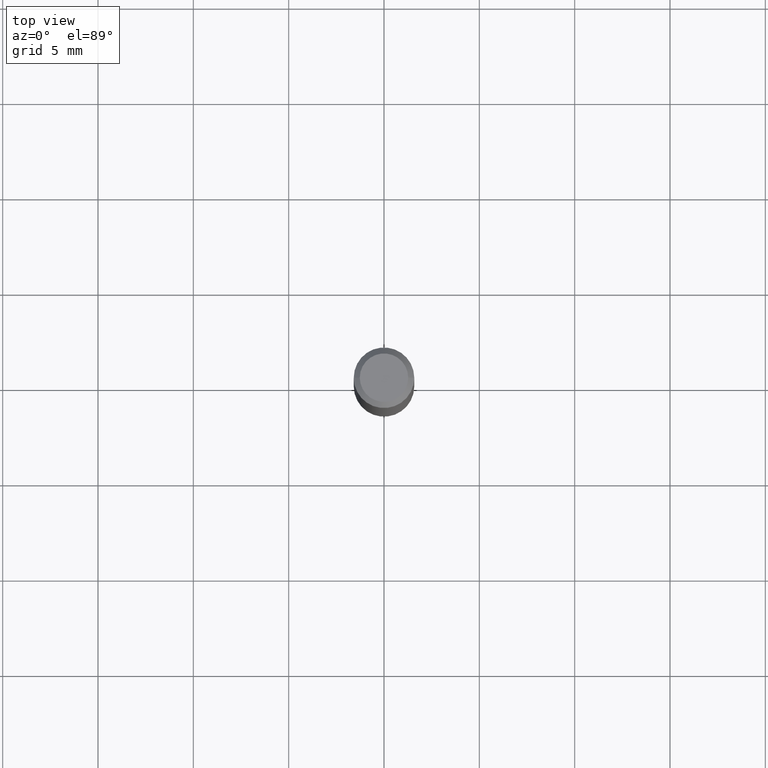
[diagram: clean part render]
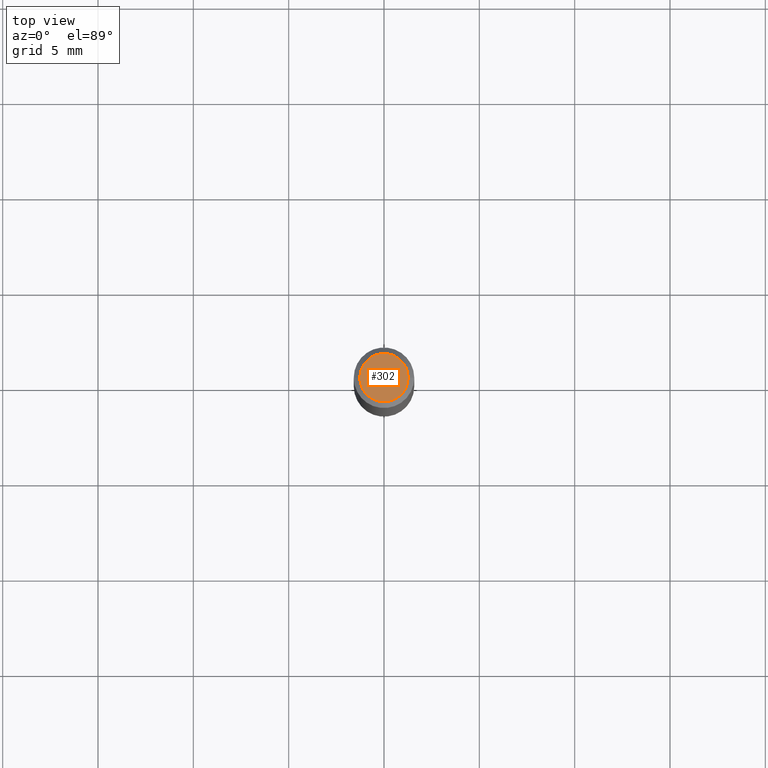
[diagram: same view with one face highlighted and labeled with its STEP entity id]
A machine part, top view. The second image highlights one B-rep face of the part: STEP entity #302.
In plain terms, the highlighted planar face has unit normal (0, -0, -1).
Its self-contained STEP definition (entity closure, byte-faithful):
#9 = ORIENTED_EDGE ( 'NONE', *, *, #402, .T. ) ;
#31 = AXIS2_PLACEMENT_3D ( 'NONE', #146, #366, #257 ) ;
#35 = DIRECTION ( 'NONE',  ( -1.000000000000000000, 6.982962677686265922E-15, -4.876176775795935793E-29 ) ) ;
#62 = AXIS2_PLACEMENT_3D ( 'NONE', #465, #321, #166 ) ;
#81 = PLANE ( 'NONE',  #298 ) ;
#89 = ORIENTED_EDGE ( 'NONE', *, *, #295, .T. ) ;
#108 = CARTESIAN_POINT ( 'NONE',  ( 1.946643104841063088E-47, -2.779290439833033990E-33, -7.960204194457798443E-19 ) ) ;
#146 = CARTESIAN_POINT ( 'NONE',  ( 3.893286209682126177E-47, -5.558580879666067980E-33, -1.592040838891559689E-18 ) ) ;
#166 = DIRECTION ( 'NONE',  ( 1.000000000000000000, -6.982962677686265922E-15, 4.875957971899673662E-29 ) ) ;
#168 = VERTEX_POINT ( 'NONE', #361 ) ;
#216 = DIRECTION ( 'NONE',  ( 2.438088387897960049E-29, -3.491481338843145188E-15, -1.000000000000000000 ) ) ;
#219 = FACE_OUTER_BOUND ( 'NONE', #395, .T. ) ;
#244 = CIRCLE ( 'NONE', #31, 0.04999999999999999584 ) ;
#257 = DIRECTION ( 'NONE',  ( 1.000000000000000000, -6.982962677686265922E-15, 4.875957971899673662E-29 ) ) ;
#277 = CIRCLE ( 'NONE', #62, 0.04999999999999999584 ) ;
#295 = EDGE_CURVE ( 'NONE', #424, #168, #244, .T. ) ;
#298 = AXIS2_PLACEMENT_3D ( 'NONE', #108, #216, #35 ) ;
#302 = ADVANCED_FACE ( 'NONE', ( #219 ), #81, .F. ) ;
#317 = CARTESIAN_POINT ( 'NONE',  ( 0.04999999999999999584, -4.077247707424184705E-16, -1.592040838888913461E-18 ) ) ;
#321 = DIRECTION ( 'NONE',  ( -2.445468806185136597E-29, 3.491481338843145583E-15, 1.000000000000000000 ) ) ;
#361 = CARTESIAN_POINT ( 'NONE',  ( -0.04999999999999999584, 3.709698922520826725E-16, -1.592040838894077649E-18 ) ) ;
#366 = DIRECTION ( 'NONE',  ( -2.445468806185136597E-29, 3.491481338843145583E-15, 1.000000000000000000 ) ) ;
#395 = EDGE_LOOP ( 'NONE', ( #9, #89 ) ) ;
#402 = EDGE_CURVE ( 'NONE', #168, #424, #277, .T. ) ;
#424 = VERTEX_POINT ( 'NONE', #317 ) ;
#465 = CARTESIAN_POINT ( 'NONE',  ( 3.893286209682126177E-47, -5.558580879666067980E-33, -1.592040838891559689E-18 ) ) ;